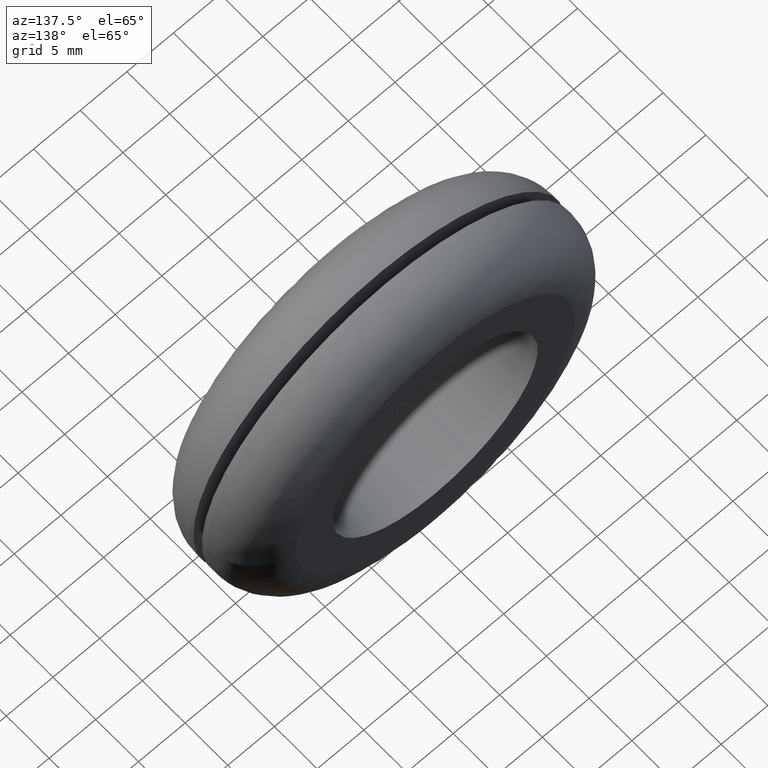
[diagram: clean part render]
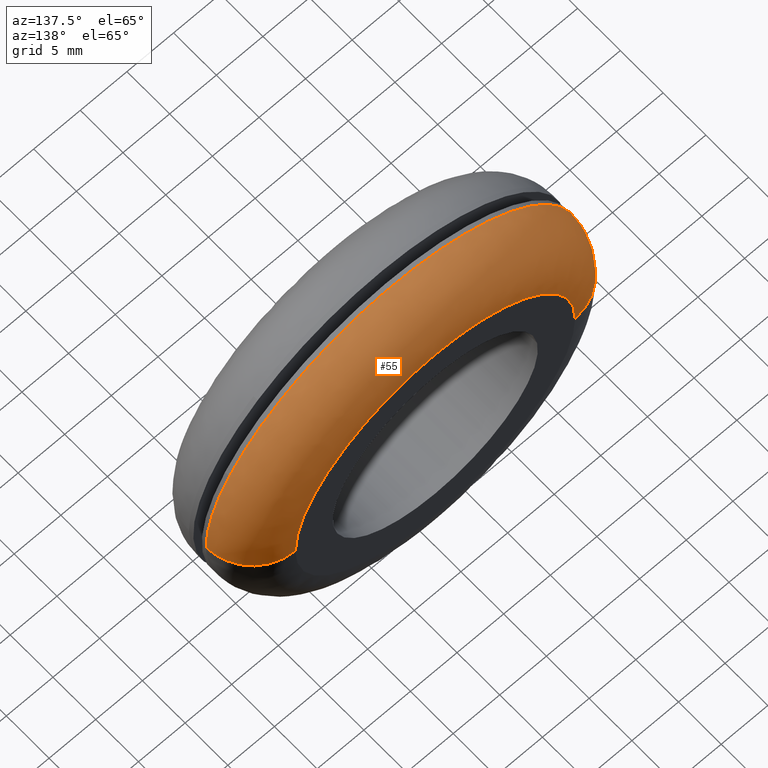
[diagram: same view with one face highlighted and labeled with its STEP entity id]
A machine part, auxiliary view. The second image highlights one B-rep face of the part: STEP entity #55.
In plain terms, the highlighted face is a freeform B-spline surface patch.
Its self-contained STEP definition (entity closure, byte-faithful):
#55=ADVANCED_FACE('',(#211),#210,.T.);
#210=( BOUNDED_SURFACE() B_SPLINE_SURFACE( 2,2,((#362,#363,#364,#365,#366),(#367,#368,#369,#370,#371),(#372,#373,#374,#375,#376),(#377,#378,#379,#380,#381),(#382,#383,#384,#385,#386)), .UNSPECIFIED.,.F.,.F.,.F.) B_SPLINE_SURFACE_WITH_KNOTS((3,2,3),(3,2,3),(0.00000000000E+000,5.00000000000E-001,1.00000000000E+000),(0.00000000000E+000,5.00000000000E-001,1.00000000000E+000), .UNSPECIFIED. ) GEOMETRIC_REPRESENTATION_ITEM() RATIONAL_B_SPLINE_SURFACE(((1.00000000000E+000,7.07106780924E-001,1.00000000000E+000,7.07106780924E-001,1.00000000000E+000),(7.07106781187E-001,4.99999999814E-001,7.07106781187E-001,4.99999999814E-001,7.07106781187E-001),(1.00000000000E+000,7.07106780924E-001,1.00000000000E+000,7.07106780924E-001,1.00000000000E+000),(7.07106781187E-001,4.99999999814E-001,7.07106781187E-001,4.99999999814E-001,7.07106781187E-001),(1.00000000000E+000,7.07106780924E-001,1.00000000000E+000,7.07106780924E-001,1.00000000000E+000))) REPRESENTATION_ITEM('') SURFACE() );
#211=FACE_OUTER_BOUND('',#387,.T.);
#362=CARTESIAN_POINT('',(1.00000000000E+001,6.99999999256E+000,4.79000479284E-013));
#363=CARTESIAN_POINT('',(9.99999999256E+000,1.19999999963E+001,5.29439170935E-013));
#364=CARTESIAN_POINT('',(1.49999999963E+001,1.20000000000E+001,5.29439150750E-013));
#365=CARTESIAN_POINT('',(2.00000000000E+001,1.20000000037E+001,5.29439130565E-013));
#366=CARTESIAN_POINT('',(2.00000000000E+001,7.00000000000E+000,4.79000438913E-013));
#367=CARTESIAN_POINT('',(1.00000000000E+001,6.99999999256E+000,1.00000000000E+001));
#368=CARTESIAN_POINT('',(9.99999999256E+000,1.19999999963E+001,9.99999999257E+000));
#369=CARTESIAN_POINT('',(1.49999999963E+001,1.20000000000E+001,1.49999999963E+001));
#370=CARTESIAN_POINT('',(2.00000000000E+001,1.20000000037E+001,2.00000000000E+001));
#371=CARTESIAN_POINT('',(2.00000000000E+001,7.00000000000E+000,2.00000000000E+001));
#372=CARTESIAN_POINT('',(-1.04528313013E-011,6.99999999256E+000,1.00000000000E+001));
#373=CARTESIAN_POINT('',(-1.11743801494E-011,1.19999999963E+001,9.99999999257E+000));
#374=CARTESIAN_POINT('',(-1.11740739680E-011,1.20000000000E+001,1.49999999963E+001));
#375=CARTESIAN_POINT('',(-1.11737677866E-011,1.20000000037E+001,2.00000000000E+001));
#376=CARTESIAN_POINT('',(-1.04522189385E-011,7.00000000000E+000,2.00000000000E+001));
#377=CARTESIAN_POINT('',(-1.00000000000E+001,6.99999999256E+000,1.00000000000E+001));
#378=CARTESIAN_POINT('',(-9.99999999258E+000,1.19999999963E+001,9.99999999257E+000));
#379=CARTESIAN_POINT('',(-1.49999999963E+001,1.20000000000E+001,1.49999999963E+001));
#380=CARTESIAN_POINT('',(-2.00000000000E+001,1.20000000037E+001,2.00000000000E+001));
#381=CARTESIAN_POINT('',(-2.00000000000E+001,6.99999999999E+000,2.00000000000E+001));
#382=CARTESIAN_POINT('',(-1.00000000000E+001,6.99999999256E+000,4.80225206974E-013));
#383=CARTESIAN_POINT('',(-9.99999999258E+000,1.19999999963E+001,5.30663898624E-013));
#384=CARTESIAN_POINT('',(-1.49999999963E+001,1.20000000000E+001,5.31276242284E-013));
#385=CARTESIAN_POINT('',(-2.00000000000E+001,1.20000000037E+001,5.31888585945E-013));
#386=CARTESIAN_POINT('',(-2.00000000000E+001,6.99999999999E+000,4.81449894293E-013));
#387=EDGE_LOOP('',(#482,#483,#484,#485,#486,#487));
#482=ORIENTED_EDGE('',*,*,#501,.T.);
#483=ORIENTED_EDGE('',*,*,#536,.T.);
#484=ORIENTED_EDGE('',*,*,#526,.F.);
#485=ORIENTED_EDGE('',*,*,#525,.F.);
#486=ORIENTED_EDGE('',*,*,#533,.F.);
#487=ORIENTED_EDGE('',*,*,#537,.F.);
#501=EDGE_CURVE('',#630,#622,#631,.T.);
#525=EDGE_CURVE('',#791,#792,#793,.T.);
#526=EDGE_CURVE('',#792,#799,#800,.T.);
#533=EDGE_CURVE('',#839,#791,#846,.T.);
#536=EDGE_CURVE('',#622,#799,#864,.T.);
#537=EDGE_CURVE('',#630,#839,#870,.T.);
#622=VERTEX_POINT('',#936);
#630=VERTEX_POINT('',#942);
#631=CIRCLE('',#946,1.50000000009E+001);
#791=VERTEX_POINT('',#1043);
#792=VERTEX_POINT('',#1044);
#793=CIRCLE('',#1048,2.00000000000E+001);
#799=VERTEX_POINT('',#1049);
#800=CIRCLE('',#1053,2.00000000000E+001);
#839=VERTEX_POINT('',#1073);
#846=CIRCLE('',#1081,2.00000000000E+001);
#864=(BOUNDED_CURVE() B_SPLINE_CURVE(2,(#1090,#1091,#1092),.UNSPECIFIED.,.F.,.F.) B_SPLINE_CURVE_WITH_KNOTS((3,3),(5.00000000000E-001,1.00000000000E+000),.UNSPECIFIED.) CURVE() GEOMETRIC_REPRESENTATION_ITEM() RATIONAL_B_SPLINE_CURVE((1.00000000000E+000,7.07106780924E-001,1.00000000000E+000)) REPRESENTATION_ITEM('') );
#870=(BOUNDED_CURVE() B_SPLINE_CURVE(3,(#1093,#1094,#1095,#1096,#1097),.UNSPECIFIED.,.F.,.F.) B_SPLINE_CURVE_WITH_KNOTS((4,1,4),(4.99999892549E-001,7.49999938167E-001,1.00000000000E+000),.UNSPECIFIED.) CURVE() GEOMETRIC_REPRESENTATION_ITEM() RATIONAL_B_SPLINE_CURVE((1.00000000000E+000,1.00000000000E+000,1.00000000000E+000,1.00000000000E+000,1.00000000000E+000)) REPRESENTATION_ITEM('') );
#936=CARTESIAN_POINT('',(-1.50000000013E+001,1.20000000000E+001,5.25936682164E-013));
#942=CARTESIAN_POINT('',(1.49999999197E+001,1.20000000000E+001,1.55674444985E-003));
#943=CARTESIAN_POINT('',(-3.92094356982E-010,1.20000000000E+001,-8.95110652266E-010));
#944=DIRECTION('',(1.15035026736E-015,-1.00000000000E+000,1.64562803913E-014));
#945=DIRECTION('',(2.61402288704E-011,-1.64562803913E-014,-1.00000000000E+000));
#946=AXIS2_PLACEMENT_3D('',#943,#944,#945);
#1043=CARTESIAN_POINT('',(1.74989303398E+001,7.00000000000E+000,9.68439140904E+000));
#1044=CARTESIAN_POINT('',(-1.99984208841E+001,7.00000000005E+000,2.51320797678E-001));
#1045=CARTESIAN_POINT('',(4.97379915032E-014,7.00000000000E+000,7.46069872548E-013));
#1046=DIRECTION('',(1.79101040504E-016,-1.00000000000E+000,-4.25113083832E-014));
#1047=DIRECTION('',(-8.74946516989E-001,2.04281036531E-014,-4.84219570452E-001));
#1048=AXIS2_PLACEMENT_3D('',#1045,#1046,#1047);
#1049=CARTESIAN_POINT('',(-2.00000000000E+001,6.99999999995E+000,4.76481987546E-013));
#1050=CARTESIAN_POINT('',(-1.95399252334E-014,7.00000000008E+000,-2.84217094304E-014));
#1051=DIRECTION('',(6.33859165819E-012,-1.00000000000E+000,3.75934231561E-010));
#1052=DIRECTION('',(9.99921044204E-001,1.61408664212E-012,-1.25660398839E-002));
#1053=AXIS2_PLACEMENT_3D('',#1050,#1051,#1052);
#1073=CARTESIAN_POINT('',(2.00000000000E+001,6.99999999995E+000,4.05240067178E-006));
#1078=CARTESIAN_POINT('',(2.68585154117E-012,7.00000000060E+000,-1.95399252334E-014));
#1079=DIRECTION('',(-3.23858086441E-011,-1.00000000000E+000,-6.56679517632E-011));
#1080=DIRECTION('',(-9.97565673840E-001,2.77277312222E-011,6.97332515756E-002));
#1081=AXIS2_PLACEMENT_3D('',#1078,#1079,#1080);
#1090=CARTESIAN_POINT('',(-1.49999999963E+001,1.20000000000E+001,5.27602301888E-013));
#1091=CARTESIAN_POINT('',(-2.00000000000E+001,1.20000000037E+001,5.26989998748E-013));
#1092=CARTESIAN_POINT('',(-2.00000000000E+001,6.99999999999E+000,4.76551307096E-013));
#1093=CARTESIAN_POINT('',(1.49999984767E+001,1.20000000000E+001,5.31130694911E-013));
#1094=CARTESIAN_POINT('',(1.62905605675E+001,1.20092214871E+001,5.31596884739E-013));
#1095=CARTESIAN_POINT('',(1.89211758385E+001,1.09211771207E+001,5.21348007615E-013));
#1096=CARTESIAN_POINT('',(2.00092210975E+001,8.29056217700E+000,4.95045534097E-013));
#1097=CARTESIAN_POINT('',(2.00000000000E+001,7.00000000000E+000,4.81984822424E-013));